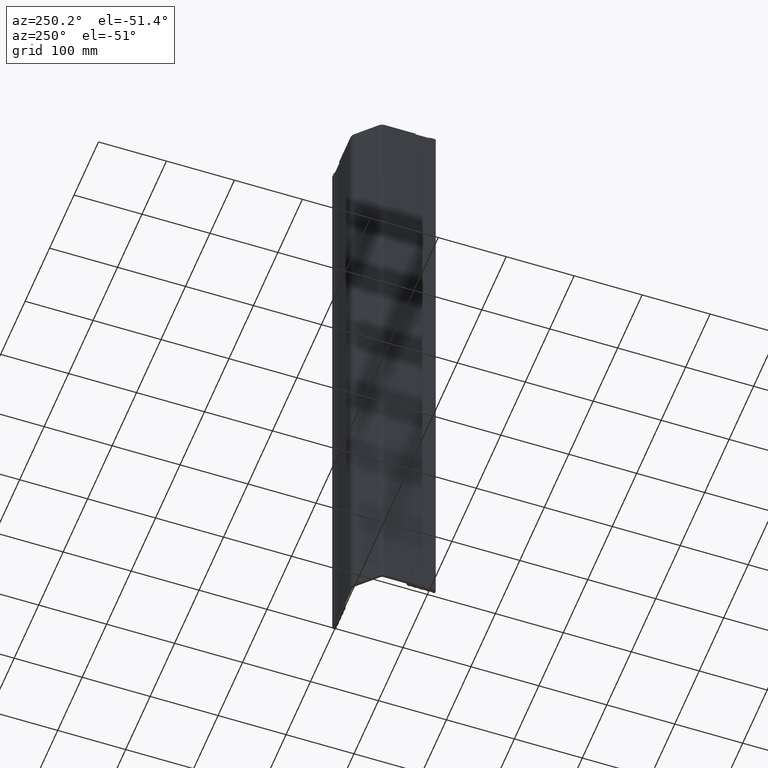
[diagram: clean part render]
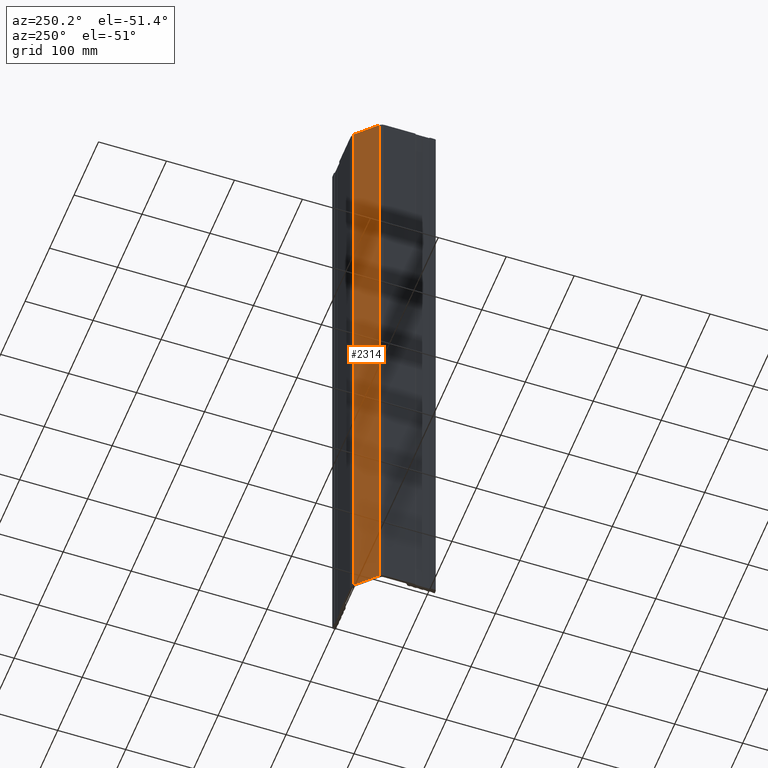
[diagram: same view with one face highlighted and labeled with its STEP entity id]
A machine part, auxiliary view. The second image highlights one B-rep face of the part: STEP entity #2314.
In plain terms, the highlighted planar face has unit normal (0.7071, -0.7071, 0).
Its self-contained STEP definition (entity closure, byte-faithful):
#109 = DIRECTION ( 'NONE',  ( -0.7071067811865474600, -0.7071067811865474600, 0.0000000000000000000 ) ) ;
#213 = AXIS2_PLACEMENT_3D ( 'NONE', #1986, #763, #2183 ) ;
#294 = CARTESIAN_POINT ( 'NONE',  ( 29.82842712474618500, -2.928932188134529400, 500.0000000000000000 ) ) ;
#297 = FACE_OUTER_BOUND ( 'NONE', #1752, .T. ) ;
#342 = LINE ( 'NONE', #294, #852 ) ;
#495 = CARTESIAN_POINT ( 'NONE',  ( 2.928932188134529400, -29.82842712474619200, 500.0000000000000000 ) ) ;
#508 = DIRECTION ( 'NONE',  ( -0.0000000000000000000, -0.0000000000000000000, -1.000000000000000000 ) ) ;
#555 = PLANE ( 'NONE',  #213 ) ;
#601 = CARTESIAN_POINT ( 'NONE',  ( 2.928932188134529400, -29.82842712474619200, 500.0000000000000000 ) ) ;
#704 = CARTESIAN_POINT ( 'NONE',  ( 29.82842712474618800, -2.928932188134529400, 500.0000000000000000 ) ) ;
#742 = LINE ( 'NONE', #495, #1828 ) ;
#763 = DIRECTION ( 'NONE',  ( 0.7071067811865475700, -0.7071067811865475700, 0.0000000000000000000 ) ) ;
#799 = LINE ( 'NONE', #2125, #1200 ) ;
#839 = ORIENTED_EDGE ( 'NONE', *, *, #1292, .F. ) ;
#852 = VECTOR ( 'NONE', #2506, 1000.000000000000000 ) ;
#1140 = VECTOR ( 'NONE', #109, 1000.000000000000100 ) ;
#1200 = VECTOR ( 'NONE', #1520, 1000.000000000000100 ) ;
#1254 = EDGE_CURVE ( 'NONE', #2122, #2085, #342, .T. ) ;
#1256 = CARTESIAN_POINT ( 'NONE',  ( 29.82842712474618500, -2.928932188134529400, -500.0000000000000000 ) ) ;
#1288 = VERTEX_POINT ( 'NONE', #1301 ) ;
#1290 = EDGE_CURVE ( 'NONE', #2085, #1288, #799, .T. ) ;
#1292 = EDGE_CURVE ( 'NONE', #1532, #1288, #742, .T. ) ;
#1301 = CARTESIAN_POINT ( 'NONE',  ( 2.928932188134529400, -29.82842712474619200, -500.0000000000000000 ) ) ;
#1310 = EDGE_CURVE ( 'NONE', #2122, #1532, #2223, .T. ) ;
#1443 = ORIENTED_EDGE ( 'NONE', *, *, #1254, .T. ) ;
#1462 = CARTESIAN_POINT ( 'NONE',  ( 29.82842712474618500, -2.928932188134529400, 500.0000000000000000 ) ) ;
#1520 = DIRECTION ( 'NONE',  ( -0.7071067811865474600, -0.7071067811865474600, 0.0000000000000000000 ) ) ;
#1532 = VERTEX_POINT ( 'NONE', #601 ) ;
#1752 = EDGE_LOOP ( 'NONE', ( #2051, #839, #1818, #1443 ) ) ;
#1818 = ORIENTED_EDGE ( 'NONE', *, *, #1310, .F. ) ;
#1828 = VECTOR ( 'NONE', #508, 1000.000000000000000 ) ;
#1986 = CARTESIAN_POINT ( 'NONE',  ( 29.82842712474618800, -2.928932188134529400, 500.0000000000000000 ) ) ;
#2051 = ORIENTED_EDGE ( 'NONE', *, *, #1290, .T. ) ;
#2085 = VERTEX_POINT ( 'NONE', #1256 ) ;
#2122 = VERTEX_POINT ( 'NONE', #1462 ) ;
#2125 = CARTESIAN_POINT ( 'NONE',  ( 29.82842712474618800, -2.928932188134529400, -500.0000000000000000 ) ) ;
#2183 = DIRECTION ( 'NONE',  ( 0.7071067811865474600, 0.7071067811865474600, 0.0000000000000000000 ) ) ;
#2223 = LINE ( 'NONE', #704, #1140 ) ;
#2314 = ADVANCED_FACE ( 'NONE', ( #297 ), #555, .F. ) ;
#2506 = DIRECTION ( 'NONE',  ( -0.0000000000000000000, -0.0000000000000000000, -1.000000000000000000 ) ) ;